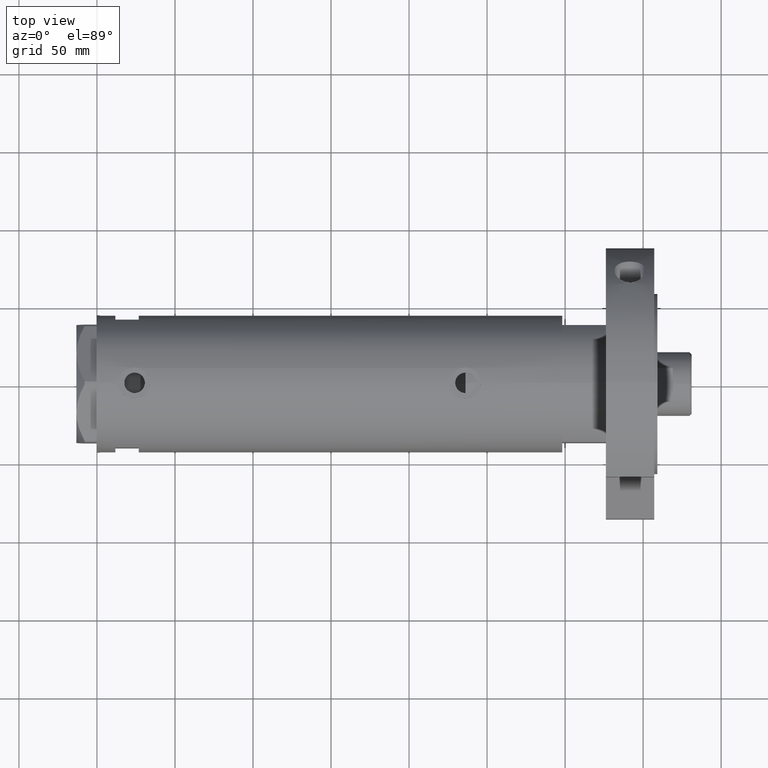
[diagram: clean part render]
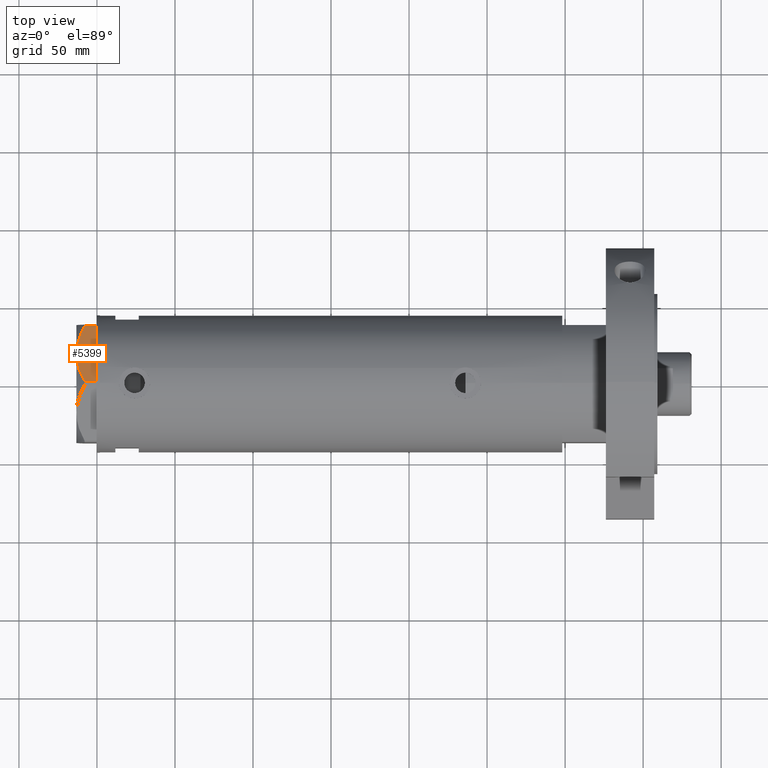
[diagram: same view with one face highlighted and labeled with its STEP entity id]
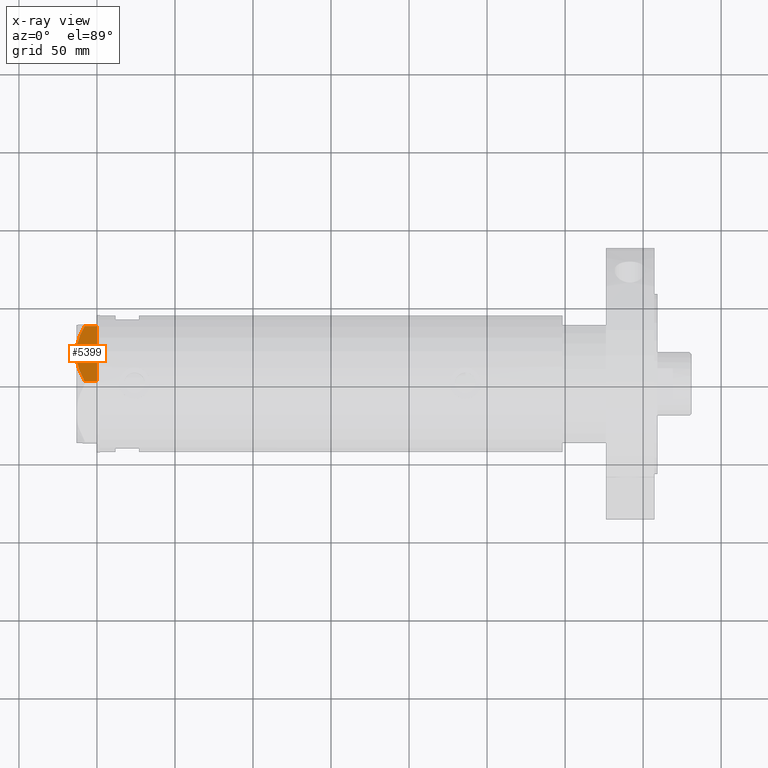
[diagram: x-ray of the same camera — body ghosted, the highlighted face saturated]
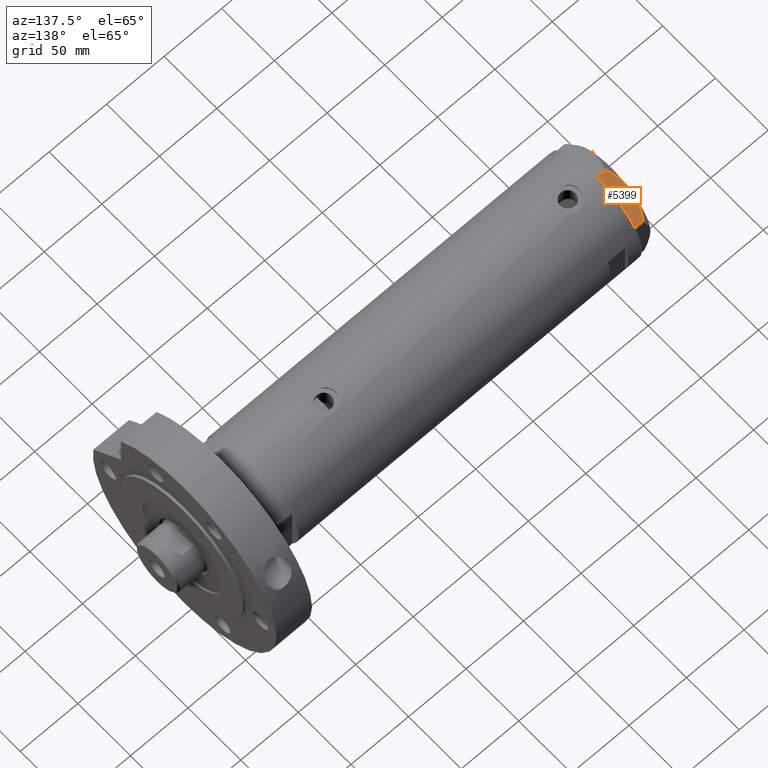
[diagram: same view with one face highlighted and labeled with its STEP entity id]
A machine part, top view. The second image highlights one B-rep face of the part: STEP entity #5399.
The next image is the same camera in x-ray: the body ghosted, the highlighted face saturated — about 0% of this face is hidden behind the body in this view.
A second angle (auxiliary view) of the same face is appended — the face is thin or edge-on in the first view.
In plain terms, the highlighted planar face has unit normal (-0, -0.5, -0.866).
Its self-contained STEP definition (entity closure, byte-faithful):
#153 = CARTESIAN_POINT ( 'NONE',  ( 25.02345495740816972, -29.14264686810265914, 12.37795492145971821 ) ) ;
#183 = CARTESIAN_POINT ( 'NONE',  ( 31.76569840794746824, -25.25001079699180551, 10.17879673963500942 ) ) ;
#266 = EDGE_CURVE ( 'NONE', #7174, #7286, #4569, .T. ) ;
#331 = EDGE_CURVE ( 'NONE', #7286, #3327, #1578, .T. ) ;
#435 = CARTESIAN_POINT ( 'NONE',  ( 36.78005154776145247, -22.35497266190836640, 13.00000000000000000 ) ) ;
#686 = LINE ( 'NONE', #7056, #4638 ) ;
#763 = CARTESIAN_POINT ( 'NONE',  ( 12.63736081963744873, -36.29376165275263588, 12.35956205105863326 ) ) ;
#1015 = CARTESIAN_POINT ( 'NONE',  ( 0.9699484522385760643, -43.02994532381674020, 0.000000000000000000 ) ) ;
#1257 = CARTESIAN_POINT ( 'NONE',  ( 18.09346002772999995, -33.14368130623511632, 12.99999999999999822 ) ) ;
#1311 = VECTOR ( 'NONE', #3731, 1000.000000000000000 ) ;
#1370 = CARTESIAN_POINT ( 'NONE',  ( 21.96683860604023764, -30.90738514137435544, 12.87183830165162846 ) ) ;
#1578 = B_SPLINE_CURVE_WITH_KNOTS ( 'NONE', 3,
 ( #6581, #3684, #1370, #153, #7235, #5976, #5405, #4871, #183, #2005, #6007, #2536 ),
 .UNSPECIFIED., .F., .F.,
 ( 4, 2, 2, 2, 2, 4 ),
 ( 0.02259271946349904886, 0.02789559809390703207, 0.03319847672431501528, 0.03584991603951900863, 0.03850135535472300197, 0.04380423398513099559 ),
 .UNSPECIFIED. ) ;
#1598 = ORIENTED_EDGE ( 'NONE', *, *, #266, .F. ) ;
#1830 = DIRECTION ( 'NONE',  ( 0.8660254037844388186, 0.4999999999999997224, 0.000000000000000000 ) ) ;
#1899 = CARTESIAN_POINT ( 'NONE',  ( 14.95332775978646822, -34.95663751642331363, 12.73960743196719747 ) ) ;
#1970 = PLANE ( 'NONE',  #5214 ) ;
#2005 = CARTESIAN_POINT ( 'NONE',  ( 33.94595399727396057, -23.99123964559198541, 9.210778219601310823 ) ) ;
#2016 = LINE ( 'NONE', #3843, #1311 ) ;
#2039 = DIRECTION ( 'NONE',  ( -0.8660254037844388186, -0.4999999999999997224, 0.000000000000000000 ) ) ;
#2213 = CARTESIAN_POINT ( 'NONE',  ( 36.78005154776143115, -22.35497266190837706, 0.000000000000000000 ) ) ;
#2468 = CARTESIAN_POINT ( 'NONE',  ( 0.9699484522384296259, -43.02994532381681836, 7.709124142616899711 ) ) ;
#2498 = DIRECTION ( 'NONE',  ( -0.4999999999999997224, 0.8660254037844388186, 0.000000000000000000 ) ) ;
#2531 = CARTESIAN_POINT ( 'NONE',  ( -4.107234936485837051E-15, -43.58994532381674247, 13.00000000000000000 ) ) ;
#2536 = CARTESIAN_POINT ( 'NONE',  ( 36.78005154775924268, -22.35497266190964538, 7.709124142618180464 ) ) ;
#2778 = ORIENTED_EDGE ( 'NONE', *, *, #331, .F. ) ;
#3092 = EDGE_LOOP ( 'NONE', ( #1598, #7445, #5799, #3667, #2778 ) ) ;
#3113 = CARTESIAN_POINT ( 'NONE',  ( 6.659529780759589457, -39.74506401221886165, 10.58681170757598977 ) ) ;
#3154 = CARTESIAN_POINT ( 'NONE',  ( 3.783045159267917956, -41.40580318275688398, 9.269459228581803600 ) ) ;
#3327 = VERTEX_POINT ( 'NONE', #3729 ) ;
#3561 = VERTEX_POINT ( 'NONE', #2213 ) ;
#3667 = ORIENTED_EDGE ( 'NONE', *, *, #4293, .T. ) ;
#3684 = CARTESIAN_POINT ( 'NONE',  ( 20.42709085942840730, -31.79635891736482023, 12.99999999999999645 ) ) ;
#3729 = CARTESIAN_POINT ( 'NONE',  ( 36.78005154775924268, -22.35497266190964538, 7.709124142618180464 ) ) ;
#3731 = DIRECTION ( 'NONE',  ( 0.000000000000000000, 0.000000000000000000, -1.000000000000000000 ) ) ;
#3843 = CARTESIAN_POINT ( 'NONE',  ( 0.9699484522385762864, -43.02994532381674020, 13.00000000000000000 ) ) ;
#3925 = VERTEX_POINT ( 'NONE', #1015 ) ;
#4225 = CARTESIAN_POINT ( 'NONE',  ( 17.30879953081281641, -33.59670525535269547, 12.96759879420491401 ) ) ;
#4293 = EDGE_CURVE ( 'NONE', #3561, #3327, #5768, .T. ) ;
#4554 = EDGE_CURVE ( 'NONE', #7174, #3925, #2016, .T. ) ;
#4569 = B_SPLINE_CURVE_WITH_KNOTS ( 'NONE', 3,
 ( #2468, #3154, #3113, #7202, #763, #1899, #6506, #4225, #1257, #5478 ),
 .UNSPECIFIED., .F., .F.,
 ( 4, 2, 2, 2, 4 ),
 ( 0.001231023567492486306, 0.01191187151549576335, 0.01725229548949740177, 0.01992250747649822532, 0.02259271946349904886 ),
 .UNSPECIFIED. ) ;
#4638 = VECTOR ( 'NONE', #1830, 1000.000000000000114 ) ;
#4871 = CARTESIAN_POINT ( 'NONE',  ( 31.03235934281740427, -25.67340430365192105, 10.48240969891324070 ) ) ;
#5111 = CARTESIAN_POINT ( 'NONE',  ( 18.87499999999998579, -32.69245899286256218, 13.00000000000000000 ) ) ;
#5214 = AXIS2_PLACEMENT_3D ( 'NONE', #2531, #2498, #2039 ) ;
#5399 = ADVANCED_FACE ( 'NONE', ( #6539 ), #1970, .F. ) ;
#5405 = CARTESIAN_POINT ( 'NONE',  ( 29.55075297405426227, -26.52881013949038547, 11.04644118613091841 ) ) ;
#5478 = CARTESIAN_POINT ( 'NONE',  ( 18.87499999999998579, -32.69245899286256218, 13.00000000000000000 ) ) ;
#5768 = LINE ( 'NONE', #435, #7049 ) ;
#5799 = ORIENTED_EDGE ( 'NONE', *, *, #7461, .T. ) ;
#5976 = CARTESIAN_POINT ( 'NONE',  ( 28.80058011347544422, -26.96192264248431769, 11.30742055474504859 ) ) ;
#6007 = CARTESIAN_POINT ( 'NONE',  ( 35.37320095427428157, -23.16721823076776232, 8.489459328479206590 ) ) ;
#6506 = CARTESIAN_POINT ( 'NONE',  ( 15.73313492417777937, -34.50641564014599538, 12.83692902789789514 ) ) ;
#6539 = FACE_OUTER_BOUND ( 'NONE', #3092, .T. ) ;
#6581 = CARTESIAN_POINT ( 'NONE',  ( 18.87499999999998579, -32.69245899286256218, 13.00000000000000000 ) ) ;
#6796 = DIRECTION ( 'NONE',  ( 0.000000000000000000, 0.000000000000000000, 1.000000000000000000 ) ) ;
#7049 = VECTOR ( 'NONE', #6796, 1000.000000000000000 ) ;
#7056 = CARTESIAN_POINT ( 'NONE',  ( -4.107234936485837051E-15, -43.58994532381674247, 0.000000000000000000 ) ) ;
#7174 = VERTEX_POINT ( 'NONE', #7450 ) ;
#7202 = CARTESIAN_POINT ( 'NONE',  ( 11.12401302890051191, -37.16749340711212568, 11.98878493998158312 ) ) ;
#7235 = CARTESIAN_POINT ( 'NONE',  ( 26.54034249379520460, -28.26687144063922830, 12.01242981158384993 ) ) ;
#7286 = VERTEX_POINT ( 'NONE', #5111 ) ;
#7445 = ORIENTED_EDGE ( 'NONE', *, *, #4554, .T. ) ;
#7450 = CARTESIAN_POINT ( 'NONE',  ( 0.9699484522384296259, -43.02994532381681836, 7.709124142616899711 ) ) ;
#7461 = EDGE_CURVE ( 'NONE', #3925, #3561, #686, .T. ) ;